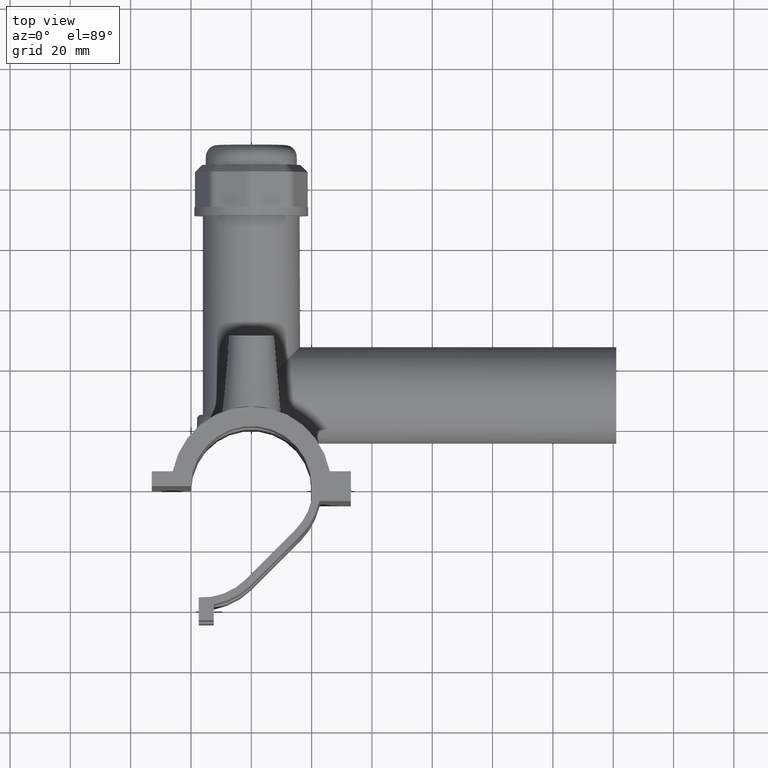
[diagram: clean part render]
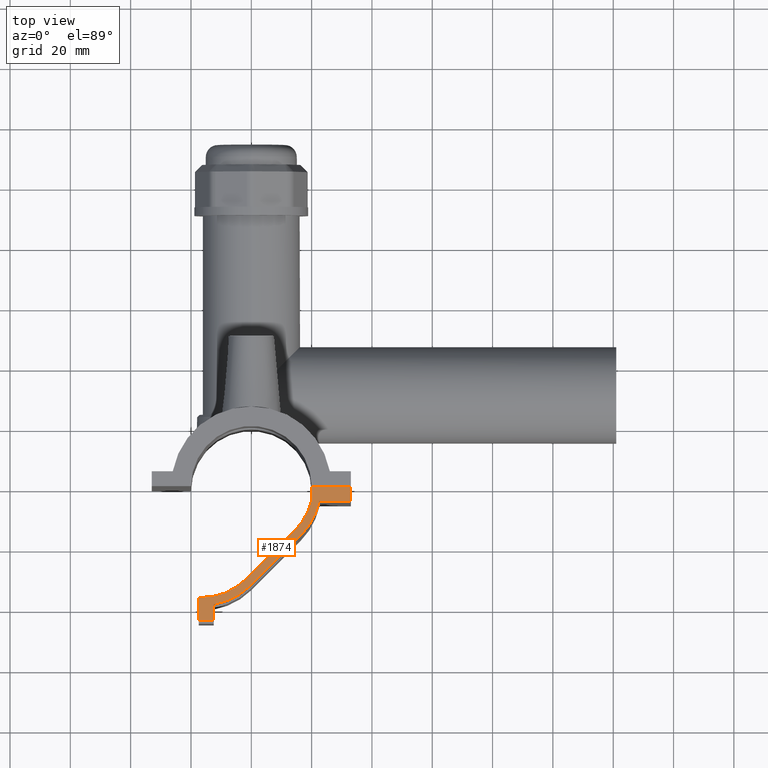
[diagram: same view with one face highlighted and labeled with its STEP entity id]
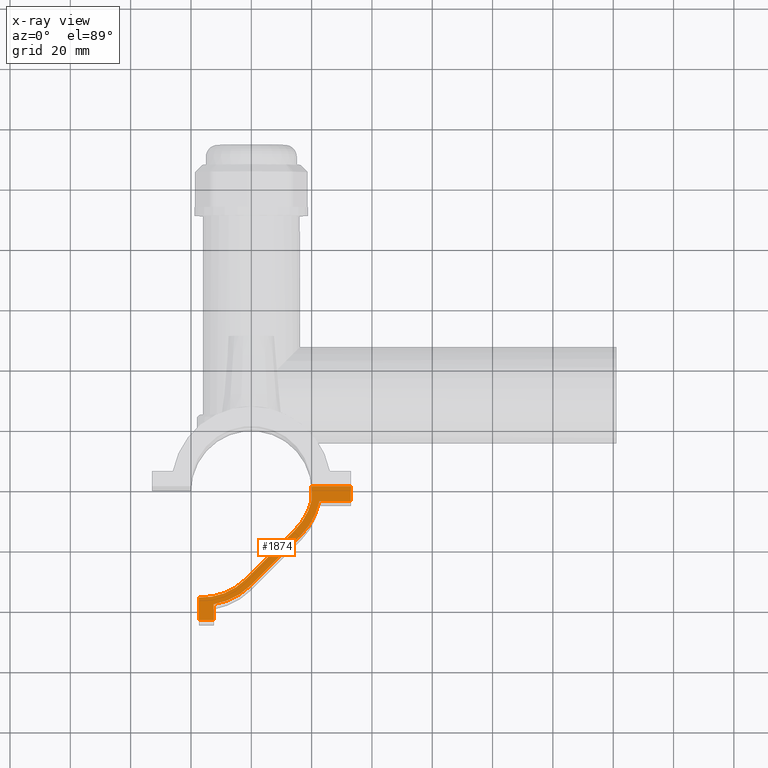
[diagram: x-ray of the same camera — body ghosted, the highlighted face saturated]
A machine part, top view. The second image highlights one B-rep face of the part: STEP entity #1874.
The next image is the same camera in x-ray: the body ghosted, the highlighted face saturated — about 0% of this face is hidden behind the body in this view.
In plain terms, the highlighted planar face has unit normal (0, 0, 1).
Its self-contained STEP definition (entity closure, byte-faithful):
#163=CIRCLE('',#2052,20.5250332296427);
#165=CIRCLE('',#2064,23.1250457296622);
#167=CIRCLE('',#2069,20.5250332296427);
#169=CIRCLE('',#2073,23.1250457296622);
#311=FACE_OUTER_BOUND('',#445,.T.);
#445=EDGE_LOOP('',(#1673,#1674,#1675,#1676,#1677,#1678,#1679,#1680,#1681,
#1682,#1683,#1684,#1685));
#562=LINE('',#3640,#707);
#566=LINE('',#3648,#711);
#571=LINE('',#3659,#716);
#576=LINE('',#3668,#721);
#579=LINE('',#3680,#724);
#583=LINE('',#3687,#728);
#585=LINE('',#3694,#730);
#589=LINE('',#3706,#734);
#591=LINE('',#3709,#736);
#707=VECTOR('',#2547,7.55302619800683);
#711=VECTOR('',#2555,4.94999999999999);
#716=VECTOR('',#2564,23.1250457845793);
#721=VECTOR('',#2573,5.25780904129159);
#724=VECTOR('',#2586,13.0000625000977);
#728=VECTOR('',#2592,4.66296965933403);
#730=VECTOR('',#2602,23.1250457845793);
#734=VECTOR('',#2614,10.4000500000781);
#736=VECTOR('',#2618,4.94999999999999);
#890=VERTEX_POINT('',#3628);
#891=VERTEX_POINT('',#3630);
#893=VERTEX_POINT('',#3638);
#895=VERTEX_POINT('',#3646);
#898=VERTEX_POINT('',#3656);
#899=VERTEX_POINT('',#3658);
#901=VERTEX_POINT('',#3666);
#904=VERTEX_POINT('',#3677);
#905=VERTEX_POINT('',#3679);
#907=VERTEX_POINT('',#3685);
#908=VERTEX_POINT('',#3690);
#910=VERTEX_POINT('',#3698);
#912=VERTEX_POINT('',#3704);
#1134=EDGE_CURVE('',#891,#890,#163,.T.);
#1139=EDGE_CURVE('',#890,#893,#562,.T.);
#1143=EDGE_CURVE('',#893,#895,#566,.T.);
#1148=EDGE_CURVE('',#899,#898,#571,.T.);
#1153=EDGE_CURVE('',#895,#901,#576,.T.);
#1155=EDGE_CURVE('',#901,#899,#165,.T.);
#1158=EDGE_CURVE('',#905,#904,#579,.T.);
#1162=EDGE_CURVE('',#904,#907,#583,.T.);
#1165=EDGE_CURVE('',#907,#908,#167,.T.);
#1166=EDGE_CURVE('',#908,#891,#585,.T.);
#1169=EDGE_CURVE('',#898,#910,#169,.T.);
#1172=EDGE_CURVE('',#910,#912,#589,.T.);
#1174=EDGE_CURVE('',#912,#905,#591,.T.);
#1673=ORIENTED_EDGE('',*,*,#1139,.T.);
#1674=ORIENTED_EDGE('',*,*,#1143,.T.);
#1675=ORIENTED_EDGE('',*,*,#1153,.T.);
#1676=ORIENTED_EDGE('',*,*,#1155,.T.);
#1677=ORIENTED_EDGE('',*,*,#1148,.T.);
#1678=ORIENTED_EDGE('',*,*,#1169,.T.);
#1679=ORIENTED_EDGE('',*,*,#1172,.T.);
#1680=ORIENTED_EDGE('',*,*,#1174,.T.);
#1681=ORIENTED_EDGE('',*,*,#1158,.T.);
#1682=ORIENTED_EDGE('',*,*,#1162,.T.);
#1683=ORIENTED_EDGE('',*,*,#1165,.T.);
#1684=ORIENTED_EDGE('',*,*,#1166,.T.);
#1685=ORIENTED_EDGE('',*,*,#1134,.T.);
#1763=PLANE('',#2076);
#1874=ADVANCED_FACE('',(#311),#1763,.T.);
#2052=AXIS2_PLACEMENT_3D('',#3631,#2537,#2538);
#2064=AXIS2_PLACEMENT_3D('',#3672,#2580,#2581);
#2069=AXIS2_PLACEMENT_3D('',#3692,#2598,#2599);
#2073=AXIS2_PLACEMENT_3D('',#3700,#2608,#2609);
#2076=AXIS2_PLACEMENT_3D('',#3710,#2619,#2620);
#2537=DIRECTION('center_axis',(0.,0.,-1.));
#2538=DIRECTION('ref_axis',(0.0510619534309793,0.998695487579579,0.));
#2547=DIRECTION('',(0.,-1.,0.));
#2555=DIRECTION('',(1.,0.,0.));
#2564=DIRECTION('',(0.707106782026161,0.707106780346934,0.));
#2573=DIRECTION('',(-8.44627878955777E-16,1.,0.));
#2580=DIRECTION('center_axis',(0.,0.,1.));
#2581=DIRECTION('ref_axis',(-0.0453209175537758,-0.998972479316665,0.));
#2586=DIRECTION('',(-1.,-2.00159438767749E-18,0.));
#2592=DIRECTION('',(0.,-1.,0.));
#2598=DIRECTION('center_axis',(0.,0.,-1.));
#2599=DIRECTION('ref_axis',(-0.707106780346934,0.707106782026161,0.));
#2602=DIRECTION('',(-0.707106782026161,-0.707106780346934,0.));
#2608=DIRECTION('center_axis',(0.,0.,1.));
#2609=DIRECTION('ref_axis',(0.707106780346934,-0.707106782026161,0.));
#2614=DIRECTION('',(1.,1.06751700676133E-16,0.));
#2618=DIRECTION('',(0.,1.,0.));
#2619=DIRECTION('center_axis',(0.,0.,1.));
#2620=DIRECTION('ref_axis',(1.,0.,0.));
#3628=CARTESIAN_POINT('',(-17.3999249998828,-36.8501347389743,50.));
#3630=CARTESIAN_POINT('',(-1.83848654541503,-30.8652668681019,50.));
#3631=CARTESIAN_POINT('Origin',(-16.3518767089415,-16.3518766701093,50.));
#3638=CARTESIAN_POINT('',(-17.3999249998828,-44.4031609369812,50.));
#3640=CARTESIAN_POINT('',(-17.3999249998828,-39.4531609369812,50.));
#3646=CARTESIAN_POINT('',(-12.4499249998828,-44.4031609369812,50.));
#3648=CARTESIAN_POINT('',(-17.3999249998828,-44.4031609369812,50.));
#3656=CARTESIAN_POINT('',(16.3518766312771,-16.3518766701093,50.));
#3658=CARTESIAN_POINT('',(-7.76644282218797E-8,-32.7037533402186,50.));
#3659=CARTESIAN_POINT('',(-7.76644282218797E-8,-32.7037533402186,50.));
#3666=CARTESIAN_POINT('',(-12.4499249998828,-39.1453518956896,50.));
#3668=CARTESIAN_POINT('',(-12.4499249998828,-44.4031609369812,50.));
#3672=CARTESIAN_POINT('Origin',(-16.3518767089415,-16.3518766701093,50.));
#3677=CARTESIAN_POINT('',(19.9999374999023,0.0500000000000078,50.));
#3679=CARTESIAN_POINT('',(33.,0.0500000000000078,50.));
#3680=CARTESIAN_POINT('',(33.,0.0500000000000078,50.));
#3685=CARTESIAN_POINT('',(19.9999374999023,-4.61296965933402,50.));
#3687=CARTESIAN_POINT('',(19.9999374999023,0.0500000000000078,50.));
#3690=CARTESIAN_POINT('',(14.5133901635265,-14.5133901979927,50.));
#3692=CARTESIAN_POINT('Origin',(0.,0.,50.));
#3694=CARTESIAN_POINT('',(14.5133901635265,-14.5133901979927,50.));
#3698=CARTESIAN_POINT('',(22.5999499999219,-4.89999999999998,50.));
#3700=CARTESIAN_POINT('Origin',(0.,0.,50.));
#3704=CARTESIAN_POINT('',(33.,-4.89999999999998,50.));
#3706=CARTESIAN_POINT('',(22.5999499999219,-4.89999999999998,50.));
#3709=CARTESIAN_POINT('',(33.,-4.89999999999998,50.));
#3710=CARTESIAN_POINT('Origin',(-14.883495313767,-42.0327509813738,50.));